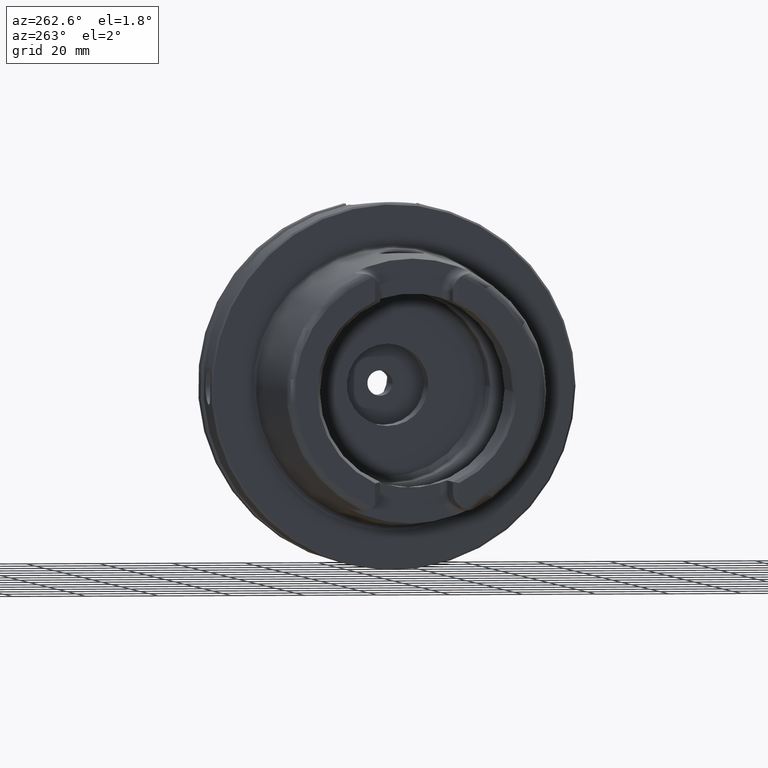
[diagram: clean part render]
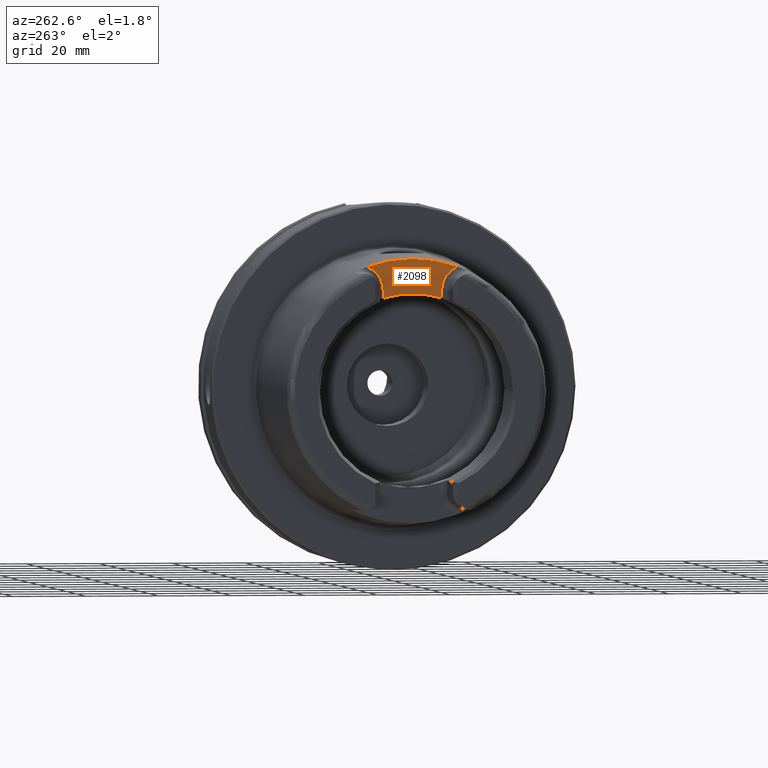
[diagram: same view with one face highlighted and labeled with its STEP entity id]
A machine part, auxiliary view. The second image highlights one B-rep face of the part: STEP entity #2098.
In plain terms, the highlighted planar face has unit normal (-1, 0, 0).
Its self-contained STEP definition (entity closure, byte-faithful):
#133=PLANE('',#2352);
#277=FACE_OUTER_BOUND('',#406,.T.);
#406=EDGE_LOOP('',(#1818,#1819,#1820,#1821,#1822,#1823));
#531=LINE('',#4394,#640);
#532=LINE('',#4423,#641);
#640=VECTOR('',#2853,10.);
#641=VECTOR('',#2866,10.);
#705=CIRCLE('',#2239,36.003493987976);
#748=CIRCLE('',#2325,6.88);
#750=CIRCLE('',#2328,6.88);
#762=CIRCLE('',#2353,26.5);
#879=VERTEX_POINT('',#3572);
#880=VERTEX_POINT('',#3589);
#971=VERTEX_POINT('',#4391);
#972=VERTEX_POINT('',#4393);
#973=VERTEX_POINT('',#4408);
#974=VERTEX_POINT('',#4412);
#1115=EDGE_CURVE('',#879,#880,#705,.T.);
#1253=EDGE_CURVE('',#971,#972,#531,.T.);
#1255=EDGE_CURVE('',#880,#971,#748,.T.);
#1257=EDGE_CURVE('',#973,#879,#750,.T.);
#1259=EDGE_CURVE('',#974,#973,#532,.T.);
#1280=EDGE_CURVE('',#972,#974,#762,.T.);
#1818=ORIENTED_EDGE('',*,*,#1255,.F.);
#1819=ORIENTED_EDGE('',*,*,#1115,.F.);
#1820=ORIENTED_EDGE('',*,*,#1257,.F.);
#1821=ORIENTED_EDGE('',*,*,#1259,.F.);
#1822=ORIENTED_EDGE('',*,*,#1280,.F.);
#1823=ORIENTED_EDGE('',*,*,#1253,.F.);
#2098=ADVANCED_FACE('',(#277),#133,.T.);
#2239=AXIS2_PLACEMENT_3D('',#3590,#2634,#2635);
#2325=AXIS2_PLACEMENT_3D('',#4406,#2856,#2857);
#2328=AXIS2_PLACEMENT_3D('',#4410,#2862,#2863);
#2352=AXIS2_PLACEMENT_3D('',#4481,#2918,#2919);
#2353=AXIS2_PLACEMENT_3D('',#4482,#2920,#2921);
#2634=DIRECTION('center_axis',(1.,0.,0.));
#2635=DIRECTION('ref_axis',(0.,1.,0.));
#2853=DIRECTION('',(0.,0.,-1.));
#2856=DIRECTION('center_axis',(-1.,0.,0.));
#2857=DIRECTION('ref_axis',(0.,0.564947834751706,0.82512662301574));
#2862=DIRECTION('center_axis',(-1.,0.,0.));
#2863=DIRECTION('ref_axis',(0.,-0.564947834751705,0.825126623015741));
#2866=DIRECTION('',(0.,0.,1.));
#2918=DIRECTION('center_axis',(-1.,0.,0.));
#2919=DIRECTION('ref_axis',(0.,0.,1.));
#2920=DIRECTION('center_axis',(-1.,0.,0.));
#2921=DIRECTION('ref_axis',(0.,1.,0.));
#3572=CARTESIAN_POINT('',(-40.,12.4227760464511,33.7923987701664));
#3589=CARTESIAN_POINT('',(-40.,-12.4227760464511,33.7923987701664));
#3590=CARTESIAN_POINT('Origin',(-40.,0.,0.));
#4391=CARTESIAN_POINT('',(-40.,-8.01,27.37));
#4393=CARTESIAN_POINT('',(-40.,-8.01,25.2604414054862));
#4394=CARTESIAN_POINT('',(-40.,-8.01,23.5));
#4406=CARTESIAN_POINT('Origin',(-40.,-14.89,27.37));
#4408=CARTESIAN_POINT('',(-40.,8.01,27.37));
#4410=CARTESIAN_POINT('Origin',(-40.,14.89,27.37));
#4412=CARTESIAN_POINT('',(-40.,8.01,25.2604414054862));
#4423=CARTESIAN_POINT('',(-40.,8.01,28.185));
#4481=CARTESIAN_POINT('Origin',(-40.,0.,29.));
#4482=CARTESIAN_POINT('Origin',(-40.,0.,0.));